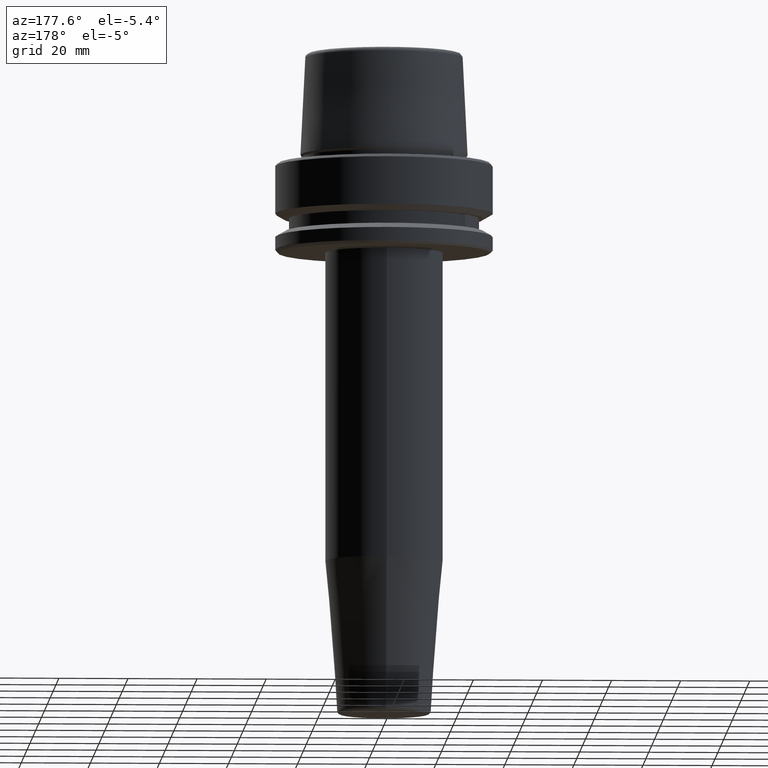
[diagram: clean part render]
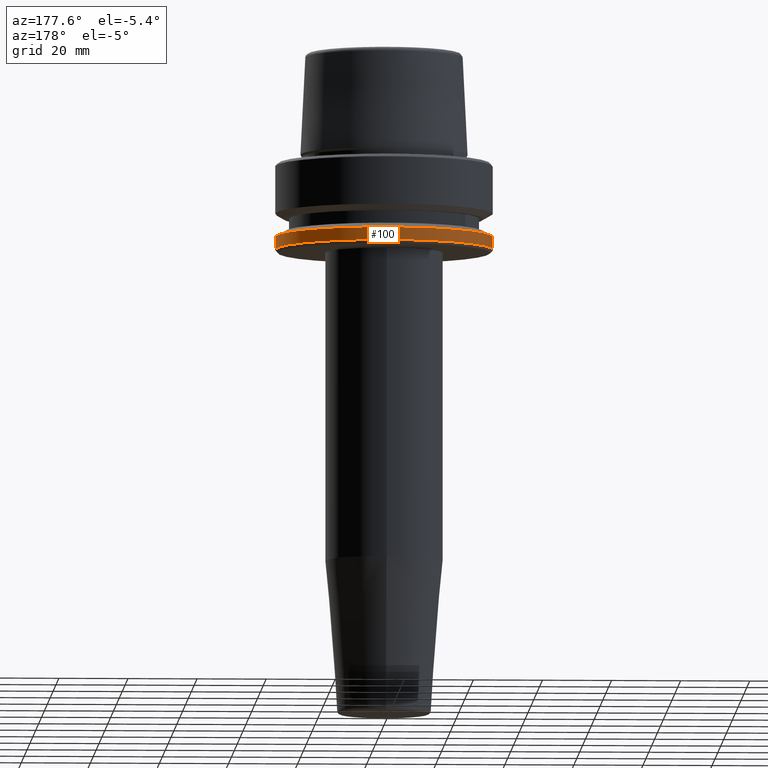
[diagram: same view with one face highlighted and labeled with its STEP entity id]
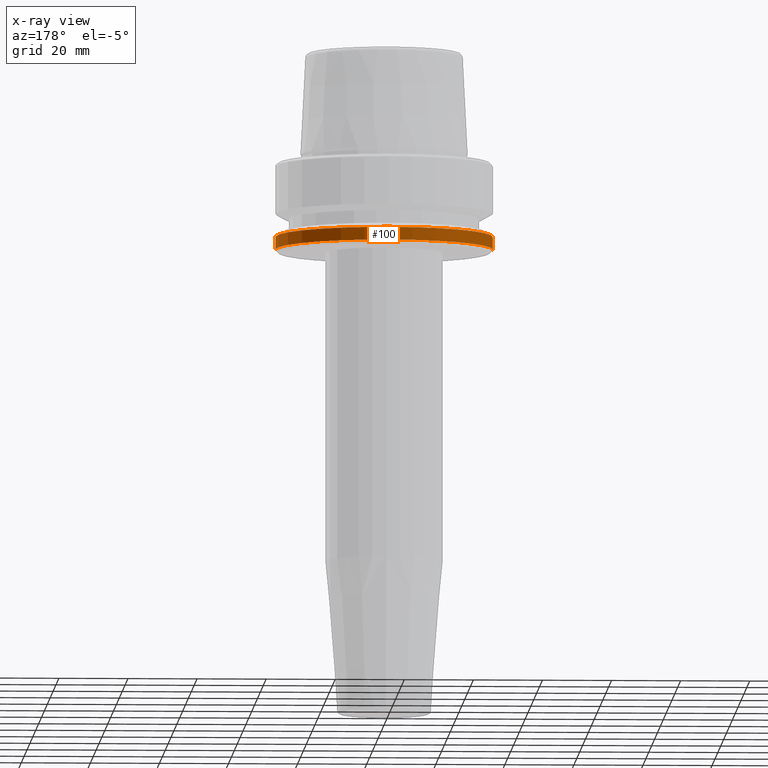
[diagram: x-ray of the same camera — body ghosted, the highlighted face saturated]
A machine part, auxiliary view. The second image highlights one B-rep face of the part: STEP entity #100.
The next image is the same camera in x-ray: the body ghosted, the highlighted face saturated — about 0% of this face is hidden behind the body in this view.
In plain terms, the highlighted cylindrical surface (partial cylindrical patch) has radius 31.5 mm, axis along (-0, -0, 1).
Its self-contained STEP definition (entity closure, byte-faithful):
#3 = CARTESIAN_POINT ( 'NONE',  ( 0.0000000000000000000, 0.0000000000000000000, -25.03431457505077200 ) ) ;
#34 = AXIS2_PLACEMENT_3D ( 'NONE', #123, #1116, #1061 ) ;
#100 = ADVANCED_FACE ( 'NONE', ( #357 ), #1011, .T. ) ;
#104 = DIRECTION ( 'NONE',  ( -0.0000000000000000000, -0.0000000000000000000, 1.000000000000000000 ) ) ;
#123 = CARTESIAN_POINT ( 'NONE',  ( 0.0000000000000000000, 0.0000000000000000000, 78.96908074195309300 ) ) ;
#184 = CARTESIAN_POINT ( 'NONE',  ( -31.50000000000000000, 3.857637417314162700E-015, 78.96908074195309300 ) ) ;
#214 = CIRCLE ( 'NONE', #621, 31.50000000000000000 ) ;
#236 = LINE ( 'NONE', #184, #440 ) ;
#296 = ORIENTED_EDGE ( 'NONE', *, *, #528, .T. ) ;
#324 = VERTEX_POINT ( 'NONE', #1001 ) ;
#357 = FACE_OUTER_BOUND ( 'NONE', #864, .T. ) ;
#410 = ORIENTED_EDGE ( 'NONE', *, *, #1163, .T. ) ;
#440 = VECTOR ( 'NONE', #840, 1000.000000000000000 ) ;
#500 = DIRECTION ( 'NONE',  ( 1.000000000000000000, 0.0000000000000000000, 0.0000000000000000000 ) ) ;
#528 = EDGE_CURVE ( 'NONE', #324, #554, #236, .T. ) ;
#554 = VERTEX_POINT ( 'NONE', #744 ) ;
#580 = EDGE_CURVE ( 'NONE', #885, #1053, #1003, .T. ) ;
#603 = CIRCLE ( 'NONE', #761, 31.50000000000000000 ) ;
#621 = AXIS2_PLACEMENT_3D ( 'NONE', #3, #104, #500 ) ;
#622 = EDGE_CURVE ( 'NONE', #1053, #554, #603, .T. ) ;
#657 = DIRECTION ( 'NONE',  ( -0.0000000000000000000, -0.0000000000000000000, 1.000000000000000000 ) ) ;
#705 = VECTOR ( 'NONE', #1089, 1000.000000000000000 ) ;
#744 = CARTESIAN_POINT ( 'NONE',  ( -31.50000000000000000, 3.857637417314162700E-015, -21.37749907475931700 ) ) ;
#761 = AXIS2_PLACEMENT_3D ( 'NONE', #1131, #657, #1221 ) ;
#836 = ORIENTED_EDGE ( 'NONE', *, *, #622, .F. ) ;
#840 = DIRECTION ( 'NONE',  ( -0.0000000000000000000, -0.0000000000000000000, 1.000000000000000000 ) ) ;
#864 = EDGE_LOOP ( 'NONE', ( #410, #296, #836, #1130 ) ) ;
#885 = VERTEX_POINT ( 'NONE', #1171 ) ;
#1001 = CARTESIAN_POINT ( 'NONE',  ( -31.50000000000000000, 3.857637417314161900E-015, -25.03431457505077200 ) ) ;
#1003 = LINE ( 'NONE', #1018, #705 ) ;
#1011 = CYLINDRICAL_SURFACE ( 'NONE', #34, 31.50000000000000000 ) ;
#1018 = CARTESIAN_POINT ( 'NONE',  ( 31.50000000000000000, 0.0000000000000000000, 78.96908074195309300 ) ) ;
#1053 = VERTEX_POINT ( 'NONE', #1164 ) ;
#1061 = DIRECTION ( 'NONE',  ( 1.000000000000000000, 0.0000000000000000000, 0.0000000000000000000 ) ) ;
#1089 = DIRECTION ( 'NONE',  ( -0.0000000000000000000, -0.0000000000000000000, 1.000000000000000000 ) ) ;
#1116 = DIRECTION ( 'NONE',  ( -0.0000000000000000000, -0.0000000000000000000, 1.000000000000000000 ) ) ;
#1130 = ORIENTED_EDGE ( 'NONE', *, *, #580, .F. ) ;
#1131 = CARTESIAN_POINT ( 'NONE',  ( 0.0000000000000000000, 0.0000000000000000000, -21.37749907475931700 ) ) ;
#1163 = EDGE_CURVE ( 'NONE', #885, #324, #214, .T. ) ;
#1164 = CARTESIAN_POINT ( 'NONE',  ( 31.50000000000000000, 0.0000000000000000000, -21.37749907475931700 ) ) ;
#1171 = CARTESIAN_POINT ( 'NONE',  ( 31.50000000000000000, 0.0000000000000000000, -25.03431457505077200 ) ) ;
#1221 = DIRECTION ( 'NONE',  ( 1.000000000000000000, 0.0000000000000000000, 0.0000000000000000000 ) ) ;